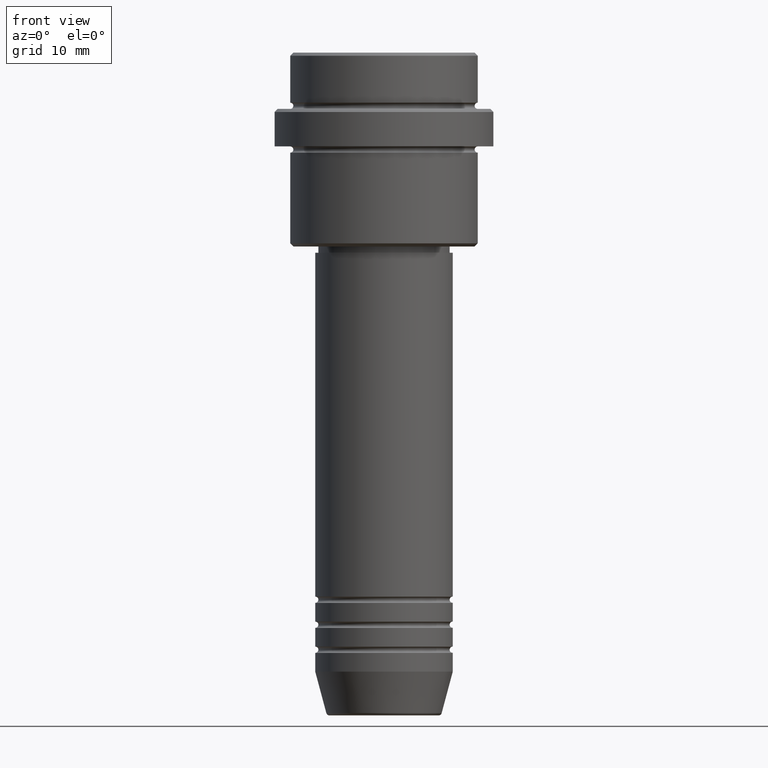
[diagram: clean part render]
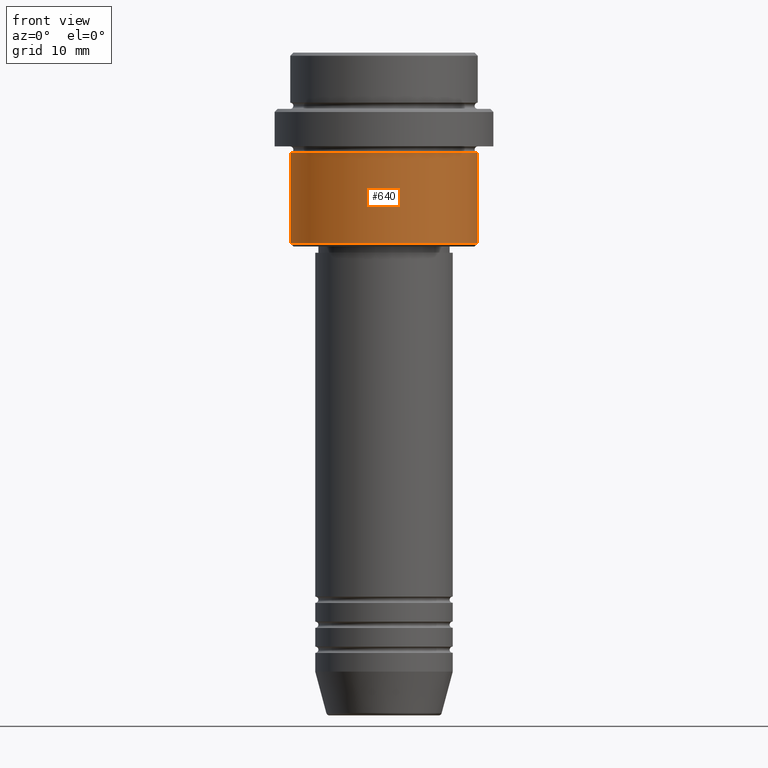
[diagram: same view with one face highlighted and labeled with its STEP entity id]
A machine part, front view. The second image highlights one B-rep face of the part: STEP entity #640.
In plain terms, the highlighted cylindrical surface (partial cylindrical patch) has radius 15 mm, axis along (-0, -0, 1).
Its self-contained STEP definition (entity closure, byte-faithful):
#7 = AXIS2_PLACEMENT_3D ( 'NONE', #498, #491, #482 ) ;
#9 = EDGE_CURVE ( 'NONE', #972, #620, #1223, .T. ) ;
#46 = DIRECTION ( 'NONE',  ( -0.000000000000000000, -0.000000000000000000, 1.000000000000000000 ) ) ;
#132 = CARTESIAN_POINT ( 'NONE',  ( -15.00000000000000000, 1.836970198721029589E-15, 0.000000000000000000 ) ) ;
#154 = ORIENTED_EDGE ( 'NONE', *, *, #244, .F. ) ;
#176 = EDGE_LOOP ( 'NONE', ( #154, #266, #376, #648 ) ) ;
#220 = EDGE_CURVE ( 'NONE', #1225, #972, #691, .T. ) ;
#244 = EDGE_CURVE ( 'NONE', #1225, #1126, #599, .T. ) ;
#266 = ORIENTED_EDGE ( 'NONE', *, *, #220, .T. ) ;
#304 = CIRCLE ( 'NONE', #882, 15.00000000000000178 ) ;
#376 = ORIENTED_EDGE ( 'NONE', *, *, #9, .T. ) ;
#459 = CARTESIAN_POINT ( 'NONE',  ( 15.00000000000000000, 0.000000000000000000, 0.000000000000000000 ) ) ;
#482 = DIRECTION ( 'NONE',  ( 1.000000000000000000, 0.000000000000000000, 0.000000000000000000 ) ) ;
#491 = DIRECTION ( 'NONE',  ( -0.000000000000000000, -0.000000000000000000, 1.000000000000000000 ) ) ;
#498 = CARTESIAN_POINT ( 'NONE',  ( 0.000000000000000000, 0.000000000000000000, 0.000000000000000000 ) ) ;
#538 = CYLINDRICAL_SURFACE ( 'NONE', #7, 15.00000000000000000 ) ;
#579 = VECTOR ( 'NONE', #46, 1000.000000000000000 ) ;
#599 = LINE ( 'NONE', #132, #579 ) ;
#601 = VECTOR ( 'NONE', #1216, 1000.000000000000000 ) ;
#620 = VERTEX_POINT ( 'NONE', #1292 ) ;
#640 = ADVANCED_FACE ( 'NONE', ( #753 ), #538, .T. ) ;
#648 = ORIENTED_EDGE ( 'NONE', *, *, #774, .F. ) ;
#686 = CARTESIAN_POINT ( 'NONE',  ( 0.000000000000000000, 0.000000000000000000, -16.00000000000000000 ) ) ;
#688 = AXIS2_PLACEMENT_3D ( 'NONE', #1327, #1336, #1346 ) ;
#691 = CIRCLE ( 'NONE', #688, 15.00000000000000000 ) ;
#753 = FACE_OUTER_BOUND ( 'NONE', #176, .T. ) ;
#774 = EDGE_CURVE ( 'NONE', #1126, #620, #304, .T. ) ;
#795 = CARTESIAN_POINT ( 'NONE',  ( -15.00000000000000000, 1.836970198721029589E-15, -30.50000000000000000 ) ) ;
#882 = AXIS2_PLACEMENT_3D ( 'NONE', #686, #1345, #1242 ) ;
#916 = CARTESIAN_POINT ( 'NONE',  ( -15.00000000000000355, 1.836970198721029983E-15, -16.00000000000000000 ) ) ;
#972 = VERTEX_POINT ( 'NONE', #1012 ) ;
#1012 = CARTESIAN_POINT ( 'NONE',  ( 15.00000000000000000, 0.000000000000000000, -30.50000000000000000 ) ) ;
#1126 = VERTEX_POINT ( 'NONE', #916 ) ;
#1216 = DIRECTION ( 'NONE',  ( -0.000000000000000000, -0.000000000000000000, 1.000000000000000000 ) ) ;
#1223 = LINE ( 'NONE', #459, #601 ) ;
#1225 = VERTEX_POINT ( 'NONE', #795 ) ;
#1242 = DIRECTION ( 'NONE',  ( 1.000000000000000000, 0.000000000000000000, 0.000000000000000000 ) ) ;
#1292 = CARTESIAN_POINT ( 'NONE',  ( 15.00000000000000178, 0.000000000000000000, -16.00000000000000000 ) ) ;
#1327 = CARTESIAN_POINT ( 'NONE',  ( 0.000000000000000000, 0.000000000000000000, -30.50000000000000000 ) ) ;
#1336 = DIRECTION ( 'NONE',  ( -0.000000000000000000, -0.000000000000000000, 1.000000000000000000 ) ) ;
#1345 = DIRECTION ( 'NONE',  ( -0.000000000000000000, -0.000000000000000000, 1.000000000000000000 ) ) ;
#1346 = DIRECTION ( 'NONE',  ( -1.000000000000000000, 0.000000000000000000, 0.000000000000000000 ) ) ;